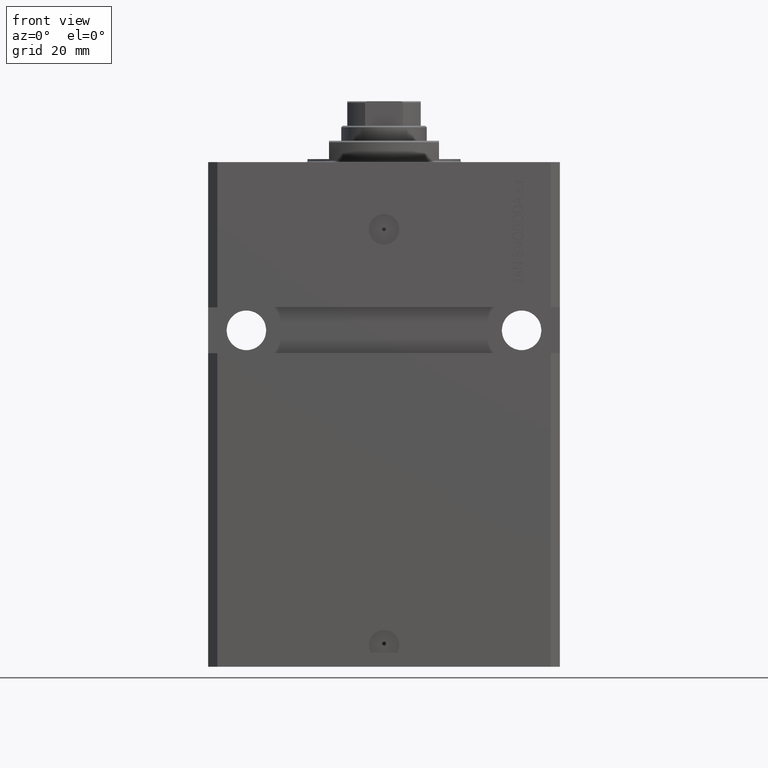
[diagram: clean part render]
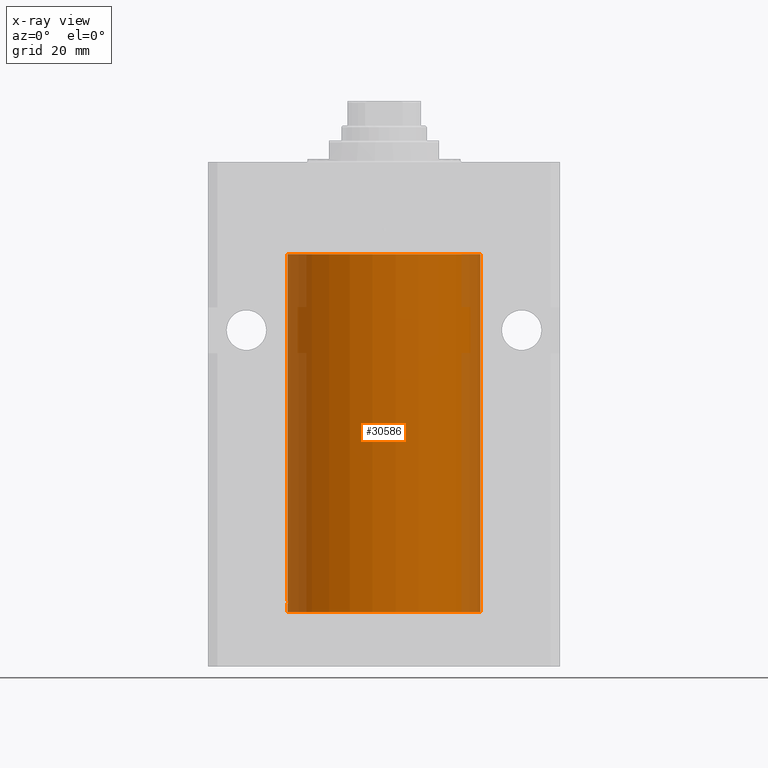
[diagram: x-ray — body ghosted, one internal face saturated and labeled with its STEP entity id]
A machine part, front view, then the same camera in x-ray: the body is ghosted and one INTERNAL B-rep face — a face not visible from any outside direction — is saturated and labeled: STEP entity #30586.
In plain terms, the highlighted cylindrical surface (partial cylindrical patch) has radius 31.5 mm, axis along (0, 0, 1).
Its self-contained STEP definition (entity closure, byte-faithful):
#668 = CARTESIAN_POINT ( 'NONE',  ( -31.50000000000000000, 3.857637417314162689E-15, -147.1000000000000227 ) ) ;
#789 = ORIENTED_EDGE ( 'NONE', *, *, #21971, .T. ) ;
#3307 = CARTESIAN_POINT ( 'NONE',  ( 0.000000000000000000, 0.000000000000000000, -147.1000000000000227 ) ) ;
#4703 = DIRECTION ( 'NONE',  ( -0.000000000000000000, -0.000000000000000000, 1.000000000000000000 ) ) ;
#5316 = CARTESIAN_POINT ( 'NONE',  ( -31.50000000000006395, 3.480980645563073824E-13, -144.6250000000032401 ) ) ;
#6028 = VERTEX_POINT ( 'NONE', #5316 ) ;
#6722 = ORIENTED_EDGE ( 'NONE', *, *, #45589, .T. ) ;
#7166 = CARTESIAN_POINT ( 'NONE',  ( 31.50000000000000000, 0.000000000000000000, -147.1000000000000227 ) ) ;
#7493 = AXIS2_PLACEMENT_3D ( 'NONE', #3307, #36994, #18324 ) ;
#7809 = VECTOR ( 'NONE', #14812, 1000.000000000000000 ) ;
#8144 = CARTESIAN_POINT ( 'NONE',  ( -31.50000000000000000, -0.1631292369235461670, -144.6250000000001705 ) ) ;
#8547 = VECTOR ( 'NONE', #22290, 1000.000000000000000 ) ;
#10381 = ORIENTED_EDGE ( 'NONE', *, *, #10894, .F. ) ;
#10894 = EDGE_CURVE ( 'NONE', #36526, #39614, #38099, .T. ) ;
#11087 = CARTESIAN_POINT ( 'NONE',  ( -31.49527619204366857, -0.5575625051463340975, -143.6738430774043422 ) ) ;
#11737 = LINE ( 'NONE', #668, #45353 ) ;
#12319 = CARTESIAN_POINT ( 'NONE',  ( 0.000000000000000000, 0.000000000000000000, -147.1000000000000227 ) ) ;
#14812 = DIRECTION ( 'NONE',  ( -0.000000000000000000, -0.000000000000000000, 1.000000000000000000 ) ) ;
#15524 = CARTESIAN_POINT ( 'NONE',  ( -31.49380174372966223, -0.6248613812773761156, -144.1653655539884085 ) ) ;
#18126 = VERTEX_POINT ( 'NONE', #37685 ) ;
#18324 = DIRECTION ( 'NONE',  ( 1.000000000000000000, 0.000000000000000000, 0.000000000000000000 ) ) ;
#18914 = CIRCLE ( 'NONE', #40087, 31.50000000000000000 ) ;
#19270 = CARTESIAN_POINT ( 'NONE',  ( 0.000000000000000000, 0.000000000000000000, -30.10000000000000142 ) ) ;
#20201 = CYLINDRICAL_SURFACE ( 'NONE', #36874, 31.50000000000000000 ) ;
#21731 = ORIENTED_EDGE ( 'NONE', *, *, #28702, .T. ) ;
#21971 = EDGE_CURVE ( 'NONE', #36526, #6028, #11737, .T. ) ;
#22290 = DIRECTION ( 'NONE',  ( -0.000000000000000000, -0.000000000000000000, 1.000000000000000000 ) ) ;
#22916 = CARTESIAN_POINT ( 'NONE',  ( -31.49528704891774211, -0.5569519313505124636, -144.3270938121662823 ) ) ;
#23659 = FACE_OUTER_BOUND ( 'NONE', #27328, .T. ) ;
#23679 = DIRECTION ( 'NONE',  ( 0.000000000000000000, 0.000000000000000000, 1.000000000000000000 ) ) ;
#24740 = EDGE_CURVE ( 'NONE', #39614, #42092, #47599, .T. ) ;
#25658 = LINE ( 'NONE', #40637, #7809 ) ;
#27007 = DIRECTION ( 'NONE',  ( -0.000000000000000000, -0.000000000000000000, 1.000000000000000000 ) ) ;
#27125 = DIRECTION ( 'NONE',  ( 1.000000000000000000, 0.000000000000000000, 0.000000000000000000 ) ) ;
#27328 = EDGE_LOOP ( 'NONE', ( #10381, #789, #45086, #21731, #6722, #30746 ) ) ;
#28702 = EDGE_CURVE ( 'NONE', #18126, #35431, #25658, .T. ) ;
#30295 = CARTESIAN_POINT ( 'NONE',  ( -31.49999999999999289, -0.1651478413230000331, -143.3749999999999716 ) ) ;
#30586 = ADVANCED_FACE ( 'NONE', ( #23659 ), #20201, .F. ) ;
#30746 = ORIENTED_EDGE ( 'NONE', *, *, #24740, .F. ) ;
#33353 = EDGE_CURVE ( 'NONE', #6028, #18126, #35756, .T. ) ;
#33737 = CARTESIAN_POINT ( 'NONE',  ( -31.49851430197701063, -0.3269482044720625757, -143.4429011246694188 ) ) ;
#34450 = CARTESIAN_POINT ( 'NONE',  ( -31.50000000000000000, 3.857637417314162689E-15, -30.10000000000000142 ) ) ;
#35192 = DIRECTION ( 'NONE',  ( 1.000000000000000000, 0.000000000000000000, 0.000000000000000000 ) ) ;
#35431 = VERTEX_POINT ( 'NONE', #34450 ) ;
#35756 = B_SPLINE_CURVE_WITH_KNOTS ( 'NONE', 3,
 ( #41111, #8144, #48497, #22916, #15524, #37657, #11087, #33737, #30295, #37176 ),
 .UNSPECIFIED., .F., .F.,
 ( 4, 2, 2, 2, 4 ),
 ( 0.001954083649707802437, 0.002442494148669407429, 0.002930904647631011987, 0.003419315146592616979, 0.003907725645554221972 ),
 .UNSPECIFIED. ) ;
#36526 = VERTEX_POINT ( 'NONE', #37178 ) ;
#36874 = AXIS2_PLACEMENT_3D ( 'NONE', #12319, #4703, #35192 ) ;
#36994 = DIRECTION ( 'NONE',  ( 0.000000000000000000, 0.000000000000000000, 1.000000000000000000 ) ) ;
#37176 = CARTESIAN_POINT ( 'NONE',  ( -31.50000000000000000, -1.368427456661360094E-15, -143.3750000000000000 ) ) ;
#37178 = CARTESIAN_POINT ( 'NONE',  ( -31.50000000000000000, 3.857637417314162689E-15, -147.1000000000000227 ) ) ;
#37657 = CARTESIAN_POINT ( 'NONE',  ( -31.49379625064871391, -0.6251381781549149030, -143.8356839311847182 ) ) ;
#37685 = CARTESIAN_POINT ( 'NONE',  ( -31.50000000000000000, -1.368427456661360094E-15, -143.3750000000000000 ) ) ;
#38083 = CARTESIAN_POINT ( 'NONE',  ( 31.50000000000000000, 0.000000000000000000, -30.10000000000000142 ) ) ;
#38099 = CIRCLE ( 'NONE', #7493, 31.50000000000000000 ) ;
#39614 = VERTEX_POINT ( 'NONE', #7166 ) ;
#40087 = AXIS2_PLACEMENT_3D ( 'NONE', #19270, #23679, #27125 ) ;
#40637 = CARTESIAN_POINT ( 'NONE',  ( -31.50000000000000000, 3.857637417314162689E-15, -147.1000000000000227 ) ) ;
#41111 = CARTESIAN_POINT ( 'NONE',  ( -31.50000000000006395, 3.480980645563073824E-13, -144.6250000000032401 ) ) ;
#42092 = VERTEX_POINT ( 'NONE', #38083 ) ;
#44396 = CARTESIAN_POINT ( 'NONE',  ( 31.50000000000000000, 0.000000000000000000, -147.1000000000000227 ) ) ;
#45086 = ORIENTED_EDGE ( 'NONE', *, *, #33353, .T. ) ;
#45353 = VECTOR ( 'NONE', #27007, 1000.000000000000000 ) ;
#45589 = EDGE_CURVE ( 'NONE', #35431, #42092, #18914, .T. ) ;
#47599 = LINE ( 'NONE', #44396, #8547 ) ;
#48497 = CARTESIAN_POINT ( 'NONE',  ( -31.49852099238383119, -0.3263081977449492910, -144.5574125724066903 ) ) ;